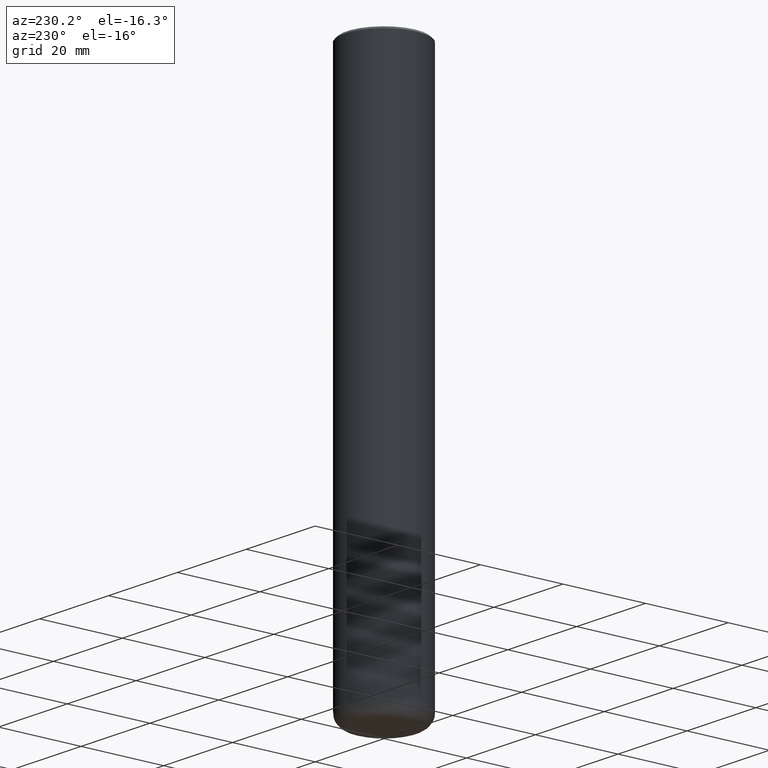
[diagram: clean part render]
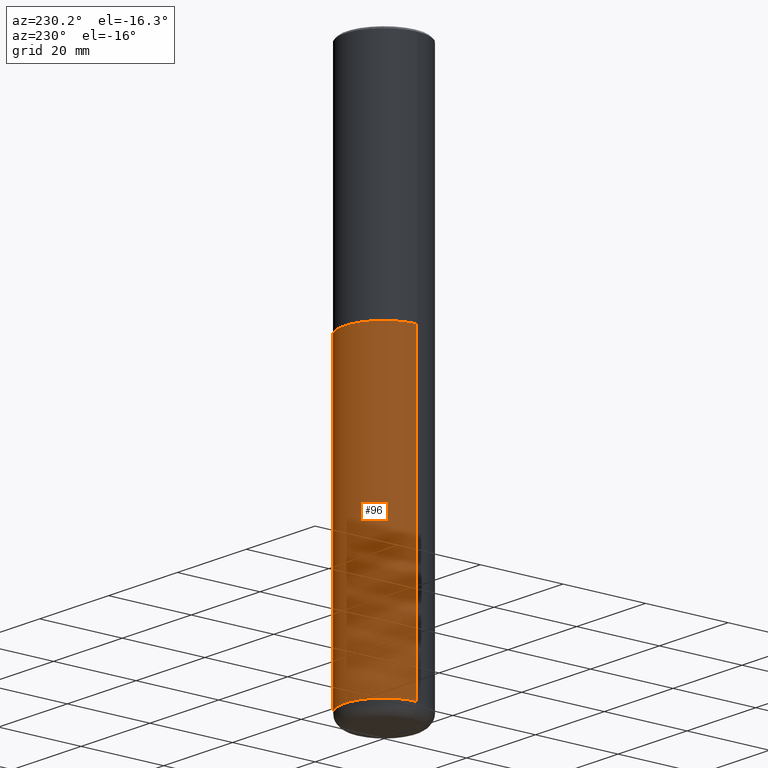
[diagram: same view with one face highlighted and labeled with its STEP entity id]
A machine part, auxiliary view. The second image highlights one B-rep face of the part: STEP entity #96.
In plain terms, the highlighted cylindrical surface (partial cylindrical patch) has radius 9.525 mm, axis along (-0, 0, 1).
Its self-contained STEP definition (entity closure, byte-faithful):
#4 = VECTOR ( 'NONE', #261, 39.37007874015748143 ) ;
#6 = LINE ( 'NONE', #129, #4 ) ;
#17 = ORIENTED_EDGE ( 'NONE', *, *, #117, .T. ) ;
#20 = AXIS2_PLACEMENT_3D ( 'NONE', #104, #359, #30 ) ;
#30 = DIRECTION ( 'NONE',  ( 1.000000000000000000, -6.982962677686265922E-15, 4.876176775795935793E-29 ) ) ;
#32 = DIRECTION ( 'NONE',  ( -2.445468806185136597E-29, 3.491481338843145583E-15, 1.000000000000000000 ) ) ;
#37 = VECTOR ( 'NONE', #257, 39.37007874015748143 ) ;
#45 = DIRECTION ( 'NONE',  ( 1.000000000000000000, -6.982962677686264344E-15, 0.000000000000000000 ) ) ;
#47 = AXIS2_PLACEMENT_3D ( 'NONE', #370, #259, #45 ) ;
#50 = EDGE_CURVE ( 'NONE', #351, #369, #365, .T. ) ;
#76 = CARTESIAN_POINT ( 'NONE',  ( 0.3750000000000000555, -1.047444401652942689E-14, -2.250000000000000000 ) ) ;
#81 = FACE_OUTER_BOUND ( 'NONE', #361, .T. ) ;
#96 = ADVANCED_FACE ( 'NONE', ( #81 ), #239, .T. ) ;
#104 = CARTESIAN_POINT ( 'NONE',  ( 0.000000000000000000, 0.000000000000000000, 0.000000000000000000 ) ) ;
#117 = EDGE_CURVE ( 'NONE', #180, #293, #413, .T. ) ;
#125 = LINE ( 'NONE', #352, #37 ) ;
#129 = CARTESIAN_POINT ( 'NONE',  ( -0.3750000000000000555, 2.664535259100376091E-15, -1.844600658845589598E-29 ) ) ;
#155 = DIRECTION ( 'NONE',  ( 1.000000000000000000, -6.982962677686261189E-15, 0.000000000000000000 ) ) ;
#158 = CARTESIAN_POINT ( 'NONE',  ( 0.3749999999999996669, -2.052991027239768345E-14, -5.129999999999999893 ) ) ;
#180 = VERTEX_POINT ( 'NONE', #158 ) ;
#209 = EDGE_CURVE ( 'NONE', #180, #351, #125, .T. ) ;
#229 = EDGE_CURVE ( 'NONE', #293, #369, #6, .T. ) ;
#236 = ORIENTED_EDGE ( 'NONE', *, *, #209, .F. ) ;
#239 = CYLINDRICAL_SURFACE ( 'NONE', #20, 0.3750000000000000555 ) ;
#257 = DIRECTION ( 'NONE',  ( -2.445468806185136877E-29, 3.491481338843145188E-15, 1.000000000000000000 ) ) ;
#259 = DIRECTION ( 'NONE',  ( -2.445468806185136597E-29, 3.491481338843145583E-15, 1.000000000000000000 ) ) ;
#261 = DIRECTION ( 'NONE',  ( -2.445468806185136877E-29, 3.491481338843145188E-15, 1.000000000000000000 ) ) ;
#266 = CARTESIAN_POINT ( 'NONE',  ( 1.254525497572975083E-28, -1.791129926826533659E-14, -5.129999999999999893 ) ) ;
#270 = ORIENTED_EDGE ( 'NONE', *, *, #50, .F. ) ;
#292 = CARTESIAN_POINT ( 'NONE',  ( -0.3750000000000000555, -1.021903088123083182E-14, -2.250000000000000000 ) ) ;
#293 = VERTEX_POINT ( 'NONE', #300 ) ;
#300 = CARTESIAN_POINT ( 'NONE',  ( -0.3749999999999996669, -1.524676400916496405E-14, -5.129999999999999893 ) ) ;
#319 = ORIENTED_EDGE ( 'NONE', *, *, #229, .T. ) ;
#334 = AXIS2_PLACEMENT_3D ( 'NONE', #266, #32, #155 ) ;
#351 = VERTEX_POINT ( 'NONE', #76 ) ;
#352 = CARTESIAN_POINT ( 'NONE',  ( 0.3750000000000000555, -2.618611004132350016E-15, 1.828566290923476203E-29 ) ) ;
#359 = DIRECTION ( 'NONE',  ( -2.445468806185136597E-29, 3.491481338843145583E-15, 1.000000000000000000 ) ) ;
#361 = EDGE_LOOP ( 'NONE', ( #17, #319, #270, #236 ) ) ;
#365 = CIRCLE ( 'NONE', #47, 0.3750000000000000555 ) ;
#369 = VERTEX_POINT ( 'NONE', #292 ) ;
#370 = CARTESIAN_POINT ( 'NONE',  ( 5.502304813916557343E-29, -7.855833012397078448E-15, -2.250000000000000000 ) ) ;
#413 = CIRCLE ( 'NONE', #334, 0.3750000000000000555 ) ;